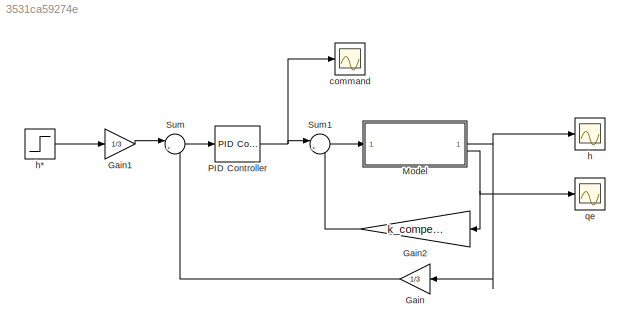
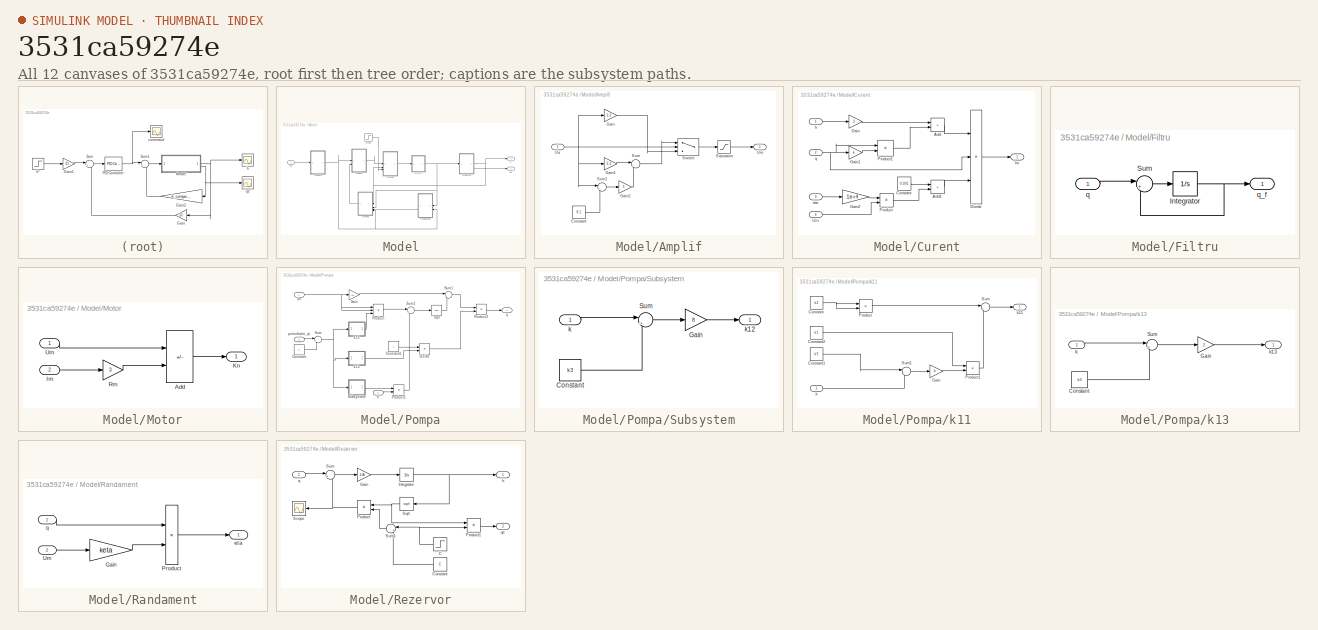
[diagram: thumbnail index - all 12 canvases of the model, root first then tree order]
MODEL slx_3531ca59274e
KIND model
CONFIG AbsTol = auto
CONFIG EnableMultiTasking = off
CONFIG FixedStep = auto
CONFIG MaxStep = auto
CONFIG MinStep = auto
CONFIG RelTol = 1e-6
CONFIG SampleTimeConstraint = Unconstrained
CONFIG SolverName = VariableStepAuto
CONFIG StartTime = 0.0
CONFIG StopTime = 2000
BLOCK [Gain] Gain
  Gain = 1/3
  NameLocation = top
BLOCK [Gain] Gain1
  Gain = 1/3
BLOCK [Gain] Gain2
  Gain = k_compensare
BLOCK [SubSystem] Model
BLOCK [SubSystem] Model/Amplif
BLOCK [Constant] Model/Amplif/Constant
  Value = 8.1
BLOCK [Gain] Model/Amplif/Gain
  Gain = 2.2
BLOCK [Gain] Model/Amplif/Gain1
  Gain = 2.2
BLOCK [Gain] Model/Amplif/Gain2
  Gain = 5
BLOCK [Saturate] Model/Amplif/Saturation
  LowerLimit = 0
  UpperLimit = 22
BLOCK [Sum] Model/Amplif/Sum
  Inputs = |++
BLOCK [Sum] Model/Amplif/Sum1
  Inputs = |+-
BLOCK [Switch] Model/Amplif/Switch
  Criteria = u2 > Threshold
  InputSameDT = off
  SaturateOnIntegerOverflow = off
  Threshold = 8.1
BLOCK [Inport] Model/Amplif/Ua
BLOCK [Outport] Model/Amplif/Um
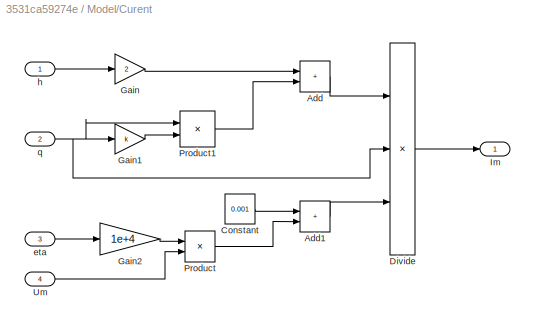
BLOCK [SubSystem] Model/Curent
BLOCK [Sum] Model/Curent/Add
  IconShape = rectangular
BLOCK [Sum] Model/Curent/Add1
  IconShape = rectangular
BLOCK [Constant] Model/Curent/Constant
  Value = 0.001
BLOCK [Product] Model/Curent/Divide
  Inputs = **/
BLOCK [Gain] Model/Curent/Gain
  Gain = 2
BLOCK [Gain] Model/Curent/Gain1
  Gain = k
BLOCK [Gain] Model/Curent/Gain2
  Gain = 1e+4
BLOCK [Outport] Model/Curent/Im
BLOCK [Product] Model/Curent/Product
BLOCK [Product] Model/Curent/Product1
BLOCK [Inport] Model/Curent/Um
  Port = 4
BLOCK [Inport] Model/Curent/eta
  Port = 3
BLOCK [Inport] Model/Curent/h
BLOCK [Inport] Model/Curent/q
  Port = 2
BLOCK [SubSystem] Model/Filtru
BLOCK [Integrator] Model/Filtru/Integrator
  InitialCondition = qo
BLOCK [Sum] Model/Filtru/Sum
  Inputs = |+-
BLOCK [Inport] Model/Filtru/q
BLOCK [Outport] Model/Filtru/q_f
BLOCK [Inport] Model/In1
BLOCK [SubSystem] Model/Motor
BLOCK [Sum] Model/Motor/Add
  IconShape = rectangular
  Inputs = +-
BLOCK [Inport] Model/Motor/Im
  Port = 2
BLOCK [Outport] Model/Motor/Kn
BLOCK [Gain] Model/Motor/Rm
  Gain = 3
BLOCK [Inport] Model/Motor/Um
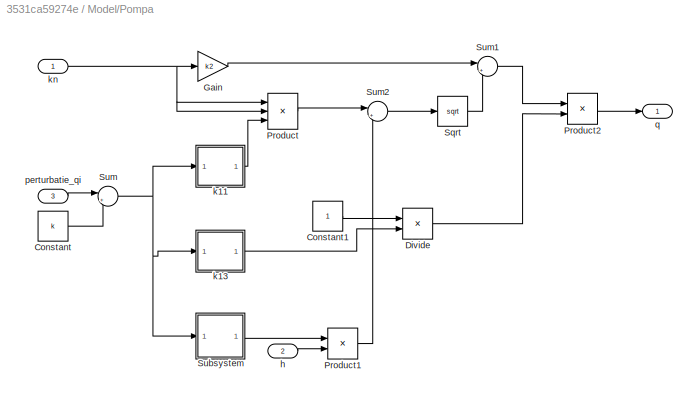
BLOCK [SubSystem] Model/Pompa
BLOCK [Constant] Model/Pompa/Constant
  Value = k
BLOCK [Constant] Model/Pompa/Constant1
BLOCK [Product] Model/Pompa/Divide
  Inputs = */
BLOCK [Gain] Model/Pompa/Gain
  Gain = k2
BLOCK [Product] Model/Pompa/Product
  Inputs = 3
BLOCK [Product] Model/Pompa/Product1
BLOCK [Product] Model/Pompa/Product2
BLOCK [Sqrt] Model/Pompa/Sqrt
BLOCK [SubSystem] Model/Pompa/Subsystem
BLOCK [Constant] Model/Pompa/Subsystem/Constant
  Value = k3
BLOCK [Gain] Model/Pompa/Subsystem/Gain
  Gain = 8
BLOCK [Sum] Model/Pompa/Subsystem/Sum
  Inputs = |+-
BLOCK [Inport] Model/Pompa/Subsystem/k
BLOCK [Outport] Model/Pompa/Subsystem/k12
BLOCK [Sum] Model/Pompa/Sum
  Inputs = |++
BLOCK [Sum] Model/Pompa/Sum1
  Inputs = |++
BLOCK [Sum] Model/Pompa/Sum2
  Inputs = |+-
BLOCK [Inport] Model/Pompa/h
  Port = 2
BLOCK [SubSystem] Model/Pompa/k11
BLOCK [Constant] Model/Pompa/k11/Constant
  Value = k2
BLOCK [Constant] Model/Pompa/k11/Constant1
  Value = k3
BLOCK [Constant] Model/Pompa/k11/Constant2
  Value = k1
BLOCK [Gain] Model/Pompa/k11/Gain
  Gain = 4
BLOCK [Product] Model/Pompa/k11/Product
BLOCK [Product] Model/Pompa/k11/Product1
BLOCK [Sum] Model/Pompa/k11/Sum
  Inputs = |++
BLOCK [Sum] Model/Pompa/k11/Sum1
  Inputs = |-+
BLOCK [Inport] Model/Pompa/k11/k
BLOCK [Outport] Model/Pompa/k11/k11
BLOCK [SubSystem] Model/Pompa/k13
BLOCK [Constant] Model/Pompa/k13/Constant
  Value = k3
BLOCK [Gain] Model/Pompa/k13/Gain
  Gain = 2
BLOCK [Sum] Model/Pompa/k13/Sum
  Inputs = |+-
BLOCK [Inport] Model/Pompa/k13/k
BLOCK [Outport] Model/Pompa/k13/k13
BLOCK [Inport] Model/Pompa/kn
BLOCK [Inport] Model/Pompa/perturbatie_qi
  Port = 3
BLOCK [Outport] Model/Pompa/q
BLOCK [SubSystem] Model/Randament
BLOCK [Gain] Model/Randament/Gain
  Gain = keta
BLOCK [Product] Model/Randament/Product
BLOCK [Inport] Model/Randament/Um
  Port = 2
BLOCK [Outport] Model/Randament/eta
BLOCK [Inport] Model/Randament/q
BLOCK [SubSystem] Model/Rezervor
BLOCK [Step] Model/Rezervor/C
  After = 2
  NameLocation = top
  SampleTime = 0
  Time = 250
BLOCK [Constant] Model/Rezervor/Constant
  NameLocation = top
  Value = C
BLOCK [Gain] Model/Rezervor/Gain
  Gain = 1/A
BLOCK [Integrator] Model/Rezervor/Integrator
  InitialCondition = ho
BLOCK [Product] Model/Rezervor/Product
  NameLocation = top
BLOCK [Product] Model/Rezervor/Product1
BLOCK [Scope] Model/Rezervor/Scope
  Floating = off
  NameLocation = top
  NumInputPorts = 1
  ScopeSpecificationString = Simulink.scopes.TimeScopeBlockCfg('CurrentConfiguration', extmgr.ConfigurationSet(extmgr.Configuration('Core','General UI',true),extmgr.Configuration('Core','Source UI',true),extmgr.Configuration('Sources','WiredSimulink',true,'DataLoggingSaveFormat','Array','DataLoggingLimitDataPoints',true,'DataLoggingDecimation','1','DataLoggingVariableName','ScopeData2'),extmgr.Configuration('Visuals','Time Do...<+1649ch>
BLOCK [Sqrt] Model/Rezervor/Sqrt
  NameLocation = top
BLOCK [Sum] Model/Rezervor/Sum
  Inputs = |+-
BLOCK [Sum] Model/Rezervor/Sum1
  Inputs = |++
  NameLocation = top
BLOCK [Outport] Model/Rezervor/h
BLOCK [Inport] Model/Rezervor/q
BLOCK [Outport] Model/Rezervor/qe
  Port = 2
BLOCK [Step] Model/Step
  After = 0.01
  SampleTime = 0
  Time = 750
BLOCK [Outport] Model/h
BLOCK [Outport] Model/qe
  Port = 2
BLOCK [Reference] PID Controller  REF=slpidlib/PID Controller
  LibrarySourceBlock = simulink/Continuous/PID Controller
  SourceBlock = slpidlib/PID Controller
  SourceType = PID 1dof
BLOCK [Sum] Sum
  Inputs = |+-
BLOCK [Sum] Sum1
  Inputs = |++
BLOCK [Scope] command
  Floating = off
  NumInputPorts = 1
  ScopeSpecificationString = Simulink.scopes.TimeScopeBlockCfg('CurrentConfiguration', extmgr.ConfigurationSet(extmgr.Configuration('Core','General UI',true),extmgr.Configuration('Core','Source UI',true),extmgr.Configuration('Sources','WiredSimulink',true,'DataLoggingVariableName','ScopeData2'),extmgr.Configuration('Visuals','Time Domain',true,'SerializedDisplays',{struct('MinYLimReal','5.48782','MaxYLimReal','8.53397','YLabe...<+1402ch>
BLOCK [Scope] h
  Floating = off
  NumInputPorts = 1
  ScopeSpecificationString = Simulink.scopes.TimeScopeBlockCfg('CurrentConfiguration', extmgr.ConfigurationSet(extmgr.Configuration('Core','General UI',true),extmgr.Configuration('Core','Source UI',true),extmgr.Configuration('Sources','WiredSimulink',true,'DataLoggingVariableName','ScopeData1'),extmgr.Configuration('Visuals','Time Domain',true,'SerializedDisplays',{struct('MinYLimReal','15.77427','MaxYLimReal','20.33157','YLa...<+1508ch>
BLOCK [Step] h*
  After = hss
  Before = ho
  SampleTime = 0
  Time = 0
BLOCK [Scope] qe
  Floating = off
  NumInputPorts = 1
  ScopeSpecificationString = Simulink.scopes.TimeScopeBlockCfg('CurrentConfiguration', extmgr.ConfigurationSet(extmgr.Configuration('Core','General UI',true),extmgr.Configuration('Core','Source UI',true),extmgr.Configuration('Sources','WiredSimulink',true,'DataLoggingVariableName','ScopeData1'),extmgr.Configuration('Visuals','Time Domain',true,'SerializedDisplays',{struct('MinYLimReal','-1.11456','MaxYLimReal','10.03102','YLa...<+1518ch>
LINE Gain1:1 -> Sum:1
LINE Gain2:1 -> Sum1:2
LINE Gain:1 -> Sum:2
LINE Model/Amplif/Constant:1 -> Model/Amplif/Sum1:2
LINE Model/Amplif/Gain1:1 -> Model/Amplif/Sum:1
LINE Model/Amplif/Gain2:1 -> Model/Amplif/Sum:2
LINE Model/Amplif/Gain:1 -> Model/Amplif/Switch:3
LINE Model/Amplif/Saturation:1 -> Model/Amplif/Um:1
LINE Model/Amplif/Sum1:1 -> Model/Amplif/Gain2:1
LINE Model/Amplif/Sum:1 -> Model/Amplif/Switch:1
LINE Model/Amplif/Switch:1 -> Model/Amplif/Saturation:1
NET Model/Amplif/Ua:1 -> Model/Amplif/Gain1:1, Model/Amplif/Gain:1, Model/Amplif/Sum1:1, Model/Amplif/Switch:2
NET Model/Amplif:1 -> Model/Curent:4, Model/Motor:1, Model/Randament:2
LINE Model/Curent/Add1:1 -> Model/Curent/Divide:3
LINE Model/Curent/Add:1 -> Model/Curent/Divide:1
LINE Model/Curent/Constant:1 -> Model/Curent/Add1:1
LINE Model/Curent/Divide:1 -> Model/Curent/Im:1
LINE Model/Curent/Gain1:1 -> Model/Curent/Product1:2
LINE Model/Curent/Gain2:1 -> Model/Curent/Product:1
LINE Model/Curent/Gain:1 -> Model/Curent/Add:1
LINE Model/Curent/Product1:1 -> Model/Curent/Add:2
LINE Model/Curent/Product:1 -> Model/Curent/Add1:2
LINE Model/Curent/Um:1 -> Model/Curent/Product:2
LINE Model/Curent/eta:1 -> Model/Curent/Gain2:1
LINE Model/Curent/h:1 -> Model/Curent/Gain:1
NET Model/Curent/q:1 -> Model/Curent/Divide:2, Model/Curent/Gain1:1, Model/Curent/Product1:1
LINE Model/Curent:1 -> Model/Motor:2
NET Model/Filtru/Integrator:1 -> Model/Filtru/Sum:2, Model/Filtru/q_f:1
LINE Model/Filtru/Sum:1 -> Model/Filtru/Integrator:1
LINE Model/Filtru/q:1 -> Model/Filtru/Sum:1
NET Model/Filtru:1 -> Model/Curent:2, Model/Randament:1, Model/Rezervor:1
LINE Model/In1:1 -> Model/Amplif:1
LINE Model/Motor/Add:1 -> Model/Motor/Kn:1
LINE Model/Motor/Im:1 -> Model/Motor/Rm:1
LINE Model/Motor/Rm:1 -> Model/Motor/Add:2
LINE Model/Motor/Um:1 -> Model/Motor/Add:1
LINE Model/Motor:1 -> Model/Pompa:1
LINE Model/Pompa/Constant1:1 -> Model/Pompa/Divide:1
LINE Model/Pompa/Constant:1 -> Model/Pompa/Sum:2
LINE Model/Pompa/Divide:1 -> Model/Pompa/Product2:2
LINE Model/Pompa/Gain:1 -> Model/Pompa/Sum1:1
LINE Model/Pompa/Product1:1 -> Model/Pompa/Sum2:2
LINE Model/Pompa/Product2:1 -> Model/Pompa/q:1
LINE Model/Pompa/Product:1 -> Model/Pompa/Sum2:1
LINE Model/Pompa/Sqrt:1 -> Model/Pompa/Sum1:2
LINE Model/Pompa/Subsystem/Constant:1 -> Model/Pompa/Subsystem/Sum:2
LINE Model/Pompa/Subsystem/Gain:1 -> Model/Pompa/Subsystem/k12:1
LINE Model/Pompa/Subsystem/Sum:1 -> Model/Pompa/Subsystem/Gain:1
LINE Model/Pompa/Subsystem/k:1 -> Model/Pompa/Subsystem/Sum:1
LINE Model/Pompa/Subsystem:1 -> Model/Pompa/Product1:1
LINE Model/Pompa/Sum1:1 -> Model/Pompa/Product2:1
LINE Model/Pompa/Sum2:1 -> Model/Pompa/Sqrt:1
NET Model/Pompa/Sum:1 -> Model/Pompa/Subsystem:1, Model/Pompa/k11:1, Model/Pompa/k13:1
LINE Model/Pompa/h:1 -> Model/Pompa/Product1:2
LINE Model/Pompa/k11/Constant1:1 -> Model/Pompa/k11/Sum1:1
LINE Model/Pompa/k11/Constant2:1 -> Model/Pompa/k11/Product1:1
NET Model/Pompa/k11/Constant:1 -> Model/Pompa/k11/Product:1, Model/Pompa/k11/Product:2
LINE Model/Pompa/k11/Gain:1 -> Model/Pompa/k11/Product1:2
LINE Model/Pompa/k11/Product1:1 -> Model/Pompa/k11/Sum:2
LINE Model/Pompa/k11/Product:1 -> Model/Pompa/k11/Sum:1
LINE Model/Pompa/k11/Sum1:1 -> Model/Pompa/k11/Gain:1
LINE Model/Pompa/k11/Sum:1 -> Model/Pompa/k11/k11:1
LINE Model/Pompa/k11/k:1 -> Model/Pompa/k11/Sum1:2
LINE Model/Pompa/k11:1 -> Model/Pompa/Product:3
LINE Model/Pompa/k13/Constant:1 -> Model/Pompa/k13/Sum:2
LINE Model/Pompa/k13/Gain:1 -> Model/Pompa/k13/k13:1
LINE Model/Pompa/k13/Sum:1 -> Model/Pompa/k13/Gain:1
LINE Model/Pompa/k13/k:1 -> Model/Pompa/k13/Sum:1
LINE Model/Pompa/k13:1 -> Model/Pompa/Divide:2
NET Model/Pompa/kn:1 -> Model/Pompa/Gain:1, Model/Pompa/Product:1, Model/Pompa/Product:2
LINE Model/Pompa/perturbatie_qi:1 -> Model/Pompa/Sum:1
LINE Model/Pompa:1 -> Model/Filtru:1
LINE Model/Randament/Gain:1 -> Model/Randament/Product:2
LINE Model/Randament/Product:1 -> Model/Randament/eta:1
LINE Model/Randament/Um:1 -> Model/Randament/Gain:1
LINE Model/Randament/q:1 -> Model/Randament/Product:1
LINE Model/Randament:1 -> Model/Curent:3
NET Model/Rezervor/C:1 -> Model/Rezervor/Product1:2, Model/Rezervor/Sum1:1
LINE Model/Rezervor/Constant:1 -> Model/Rezervor/Sum1:2
LINE Model/Rezervor/Gain:1 -> Model/Rezervor/Integrator:1
NET Model/Rezervor/Integrator:1 -> Model/Rezervor/Sqrt:1, Model/Rezervor/h:1
LINE Model/Rezervor/Product1:1 -> Model/Rezervor/qe:1
NET Model/Rezervor/Product:1 -> Model/Rezervor/Scope:1, Model/Rezervor/Sum:2
NET Model/Rezervor/Sqrt:1 -> Model/Rezervor/Product1:1, Model/Rezervor/Product:1
LINE Model/Rezervor/Sum1:1 -> Model/Rezervor/Product:2
LINE Model/Rezervor/Sum:1 -> Model/Rezervor/Gain:1
LINE Model/Rezervor/q:1 -> Model/Rezervor/Sum:1
NET Model/Rezervor:1 -> Model/Curent:1, Model/Pompa:2, Model/h:1
LINE Model/Rezervor:2 -> Model/qe:1
LINE Model/Step:1 -> Model/Pompa:3
NET Model:1 -> Gain:1, h:1
NET Model:2 -> Gain2:1, qe:1
NET PID Controller:1 -> Sum1:1, command:1
LINE Sum1:1 -> Model:1
LINE Sum:1 -> PID Controller:1
LINE h*:1 -> Gain1:1
note: NET lines group one-source signal fan-out (src -> all destinations, sorted); 1:1 wires keep LINE
